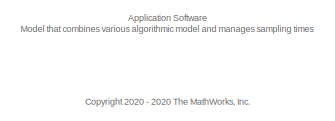
[diagram: root canvas - part 1/4, top left region]
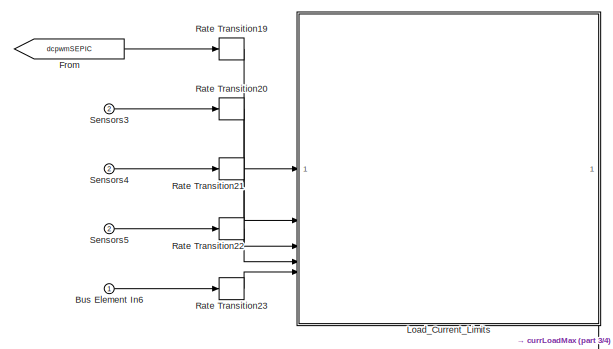
[diagram: root canvas - part 2/4, middle left region]
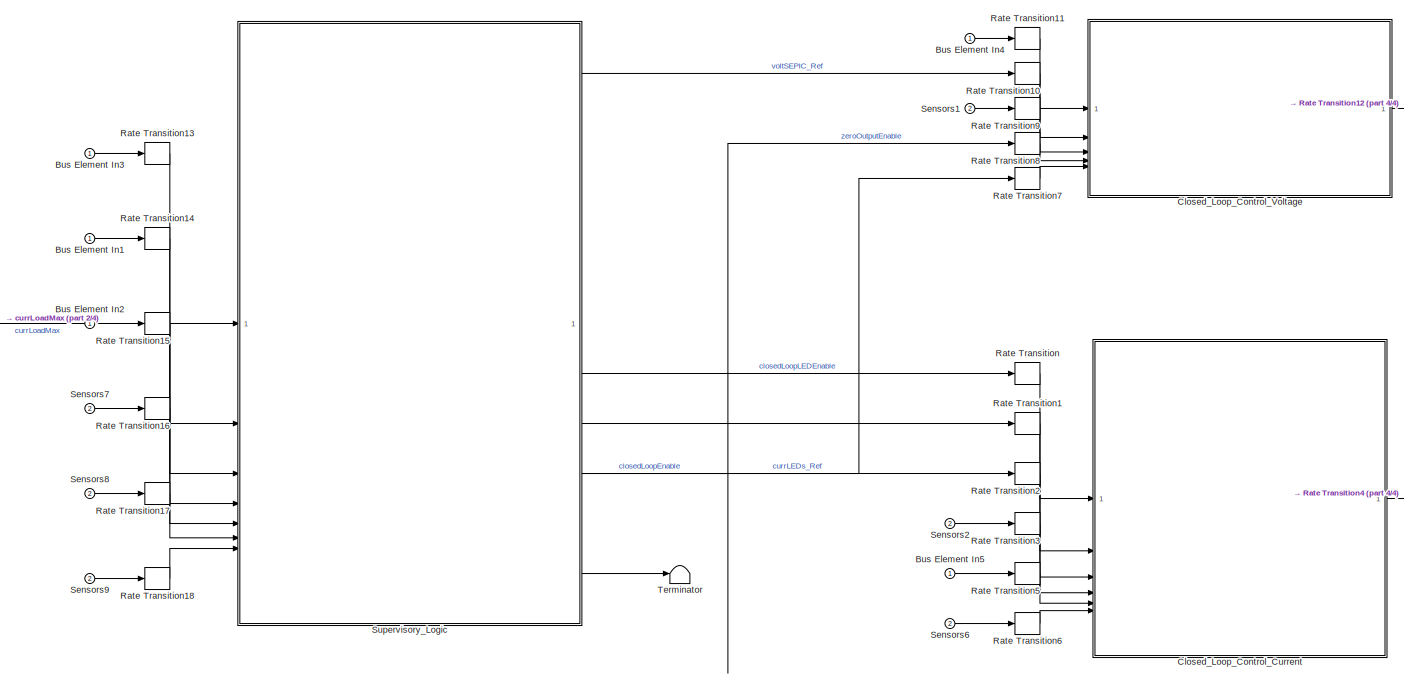
[diagram: root canvas - part 3/4, central region]
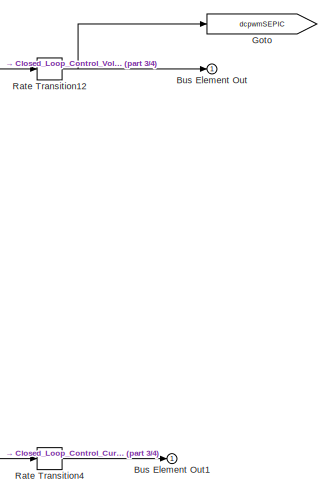
[diagram: root canvas - part 4/4, middle right region]
MODEL slx_dc866226718e
KIND model
CONFIG AbsTol = auto
CONFIG EnableMultiTasking = off
CONFIG FixedStep = auto
CONFIG MaxStep = auto
CONFIG MinStep = auto
CONFIG RelTol = 1e-3
CONFIG SampleTimeConstraint = Unconstrained
CONFIG SolverName = FixedStepDiscrete
CONFIG StartTime = 0.0
CONFIG StopTime = inf
WORKSPACE source: mxarray member
WORKSPACE TsModel = 0.0005
BLOCK [Inport] Bus Element In1
  SamplingMode = Sample based
BLOCK [Inport] Bus Element In2
  ClipboardFcn = %<Port>
  SamplingMode = Sample based
BLOCK [Inport] Bus Element In3
  SamplingMode = Sample based
BLOCK [Inport] Bus Element In4
  SamplingMode = Sample based
BLOCK [Inport] Bus Element In5
  SamplingMode = Sample based
BLOCK [Inport] Bus Element In6
  SamplingMode = Sample based
BLOCK [Outport] Bus Element Out
  SamplingMode = Sample based
BLOCK [Outport] Bus Element Out1
  SamplingMode = Sample based
BLOCK [ModelReference] Closed_Loop_Control_Current
  ModelNameDialog = Closed_Loop_LEDControllers.slx
  ModelReferenceVersion = 8.4
BLOCK [ModelReference] Closed_Loop_Control_Voltage
  ModelNameDialog = Closed_Loop_Control_Voltage
  ModelReferenceVersion = 8.2
BLOCK [From] From
  GotoTag = dcpwmSEPIC
BLOCK [Goto] Goto
  GotoTag = dcpwmSEPIC
BLOCK [ModelReference] Load_Current_Limits
  ModelNameDialog = Load_Current_Limits
  ModelReferenceVersion = 7.3
BLOCK [RateTransition] Rate Transition
  Deterministic = off
  OutPortSampleTime = ts1ms
BLOCK [RateTransition] Rate Transition1
  Deterministic = off
  OutPortSampleTime = ts1ms
BLOCK [RateTransition] Rate Transition10
  Deterministic = off
  OutPortSampleTime = ts1ms
BLOCK [RateTransition] Rate Transition11
  Deterministic = off
  OutPortSampleTime = ts1ms
BLOCK [RateTransition] Rate Transition12
  Deterministic = off
  OutPortSampleTime = ts1ms
BLOCK [RateTransition] Rate Transition13
BLOCK [RateTransition] Rate Transition14
BLOCK [RateTransition] Rate Transition15
BLOCK [RateTransition] Rate Transition16
BLOCK [RateTransition] Rate Transition17
BLOCK [RateTransition] Rate Transition18
BLOCK [RateTransition] Rate Transition19
BLOCK [RateTransition] Rate Transition2
  Deterministic = off
  OutPortSampleTime = ts1ms
BLOCK [RateTransition] Rate Transition20
BLOCK [RateTransition] Rate Transition21
BLOCK [RateTransition] Rate Transition22
BLOCK [RateTransition] Rate Transition23
BLOCK [RateTransition] Rate Transition3
  Deterministic = off
  OutPortSampleTime = ts1ms
BLOCK [RateTransition] Rate Transition4
  Deterministic = off
  OutPortSampleTime = ts1ms
BLOCK [RateTransition] Rate Transition5
  Deterministic = off
  OutPortSampleTime = ts1ms
BLOCK [RateTransition] Rate Transition6
  Deterministic = off
  OutPortSampleTime = ts1ms
BLOCK [RateTransition] Rate Transition7
  Deterministic = off
  OutPortSampleTime = ts1ms
BLOCK [RateTransition] Rate Transition8
  Deterministic = off
  InitialCondition = 1
  OutPortSampleTime = ts1ms
BLOCK [RateTransition] Rate Transition9
  Deterministic = off
  OutPortSampleTime = ts1ms
BLOCK [Inport] Sensors1
  Port = 2
  SamplingMode = Sample based
BLOCK [Inport] Sensors2
  Port = 2
  SamplingMode = Sample based
BLOCK [Inport] Sensors3
  Port = 2
  SamplingMode = Sample based
BLOCK [Inport] Sensors4
  Port = 2
  SamplingMode = Sample based
BLOCK [Inport] Sensors5
  Port = 2
  SamplingMode = Sample based
BLOCK [Inport] Sensors6
  Port = 2
  SamplingMode = Sample based
BLOCK [Inport] Sensors7
  ClipboardFcn = %<Port>
  Port = 2
  SamplingMode = Sample based
BLOCK [Inport] Sensors8
  Port = 2
  SamplingMode = Sample based
BLOCK [Inport] Sensors9
  Port = 2
  SamplingMode = Sample based
BLOCK [ModelReference] Supervisory_Logic
  ModelNameDialog = Supervisory_Logic
  ModelReferenceVersion = 7.9
BLOCK [Terminator] Terminator
ANNOTATION (root): <copyright redacted>
ANNOTATION (root): Application Software Model that combines various algorithmic model and manages sampling times
LINE Bus Element In1:1 -> Rate Transition14:1
LINE Bus Element In2:1 -> Rate Transition15:1
LINE Bus Element In3:1 -> Rate Transition13:1
LINE Bus Element In4:1 -> Rate Transition11:1
LINE Bus Element In5:1 -> Rate Transition5:1
LINE Bus Element In6:1 -> Rate Transition23:1
LINE Closed_Loop_Control_Current:1 -> Rate Transition4:1
LINE Closed_Loop_Control_Voltage:1 -> Rate Transition12:1
LINE From:1 -> Rate Transition19:1
LINE Load_Current_Limits:1 -> Supervisory_Logic:1
LINE Rate Transition10:1 -> Closed_Loop_Control_Voltage:2
LINE Rate Transition11:1 -> Closed_Loop_Control_Voltage:1
NET Rate Transition12:1 -> Bus Element Out:1, Goto:1
LINE Rate Transition13:1 -> Supervisory_Logic:2
LINE Rate Transition14:1 -> Supervisory_Logic:3
LINE Rate Transition15:1 -> Supervisory_Logic:4
LINE Rate Transition16:1 -> Supervisory_Logic:5
LINE Rate Transition17:1 -> Supervisory_Logic:6
LINE Rate Transition18:1 -> Supervisory_Logic:7
LINE Rate Transition19:1 -> Load_Current_Limits:1
LINE Rate Transition1:1 -> Closed_Loop_Control_Current:2
LINE Rate Transition20:1 -> Load_Current_Limits:2
LINE Rate Transition21:1 -> Load_Current_Limits:3
LINE Rate Transition22:1 -> Load_Current_Limits:4
LINE Rate Transition23:1 -> Load_Current_Limits:5
LINE Rate Transition2:1 -> Closed_Loop_Control_Current:3
LINE Rate Transition3:1 -> Closed_Loop_Control_Current:4
LINE Rate Transition4:1 -> Bus Element Out1:1
LINE Rate Transition5:1 -> Closed_Loop_Control_Current:5
LINE Rate Transition6:1 -> Closed_Loop_Control_Current:6
LINE Rate Transition7:1 -> Closed_Loop_Control_Voltage:5
LINE Rate Transition8:1 -> Closed_Loop_Control_Voltage:4
LINE Rate Transition9:1 -> Closed_Loop_Control_Voltage:3
LINE Rate Transition:1 -> Closed_Loop_Control_Current:1
LINE Sensors1:1 -> Rate Transition9:1
LINE Sensors2:1 -> Rate Transition3:1
LINE Sensors3:1 -> Rate Transition20:1
LINE Sensors4:1 -> Rate Transition21:1
LINE Sensors5:1 -> Rate Transition22:1
LINE Sensors6:1 -> Rate Transition6:1
LINE Sensors7:1 -> Rate Transition16:1
LINE Sensors8:1 -> Rate Transition17:1
LINE Sensors9:1 -> Rate Transition18:1
LINE Supervisory_Logic:1 -> Rate Transition10:1
NET Supervisory_Logic:2 -> Rate Transition1:1, Rate Transition8:1
LINE Supervisory_Logic:3 -> Rate Transition7:1
LINE Supervisory_Logic:4 -> Rate Transition:1
LINE Supervisory_Logic:5 -> Rate Transition2:1
LINE Supervisory_Logic:6 -> Terminator:1
note: NET lines group one-source signal fan-out (src -> all destinations, sorted); 1:1 wires keep LINE
